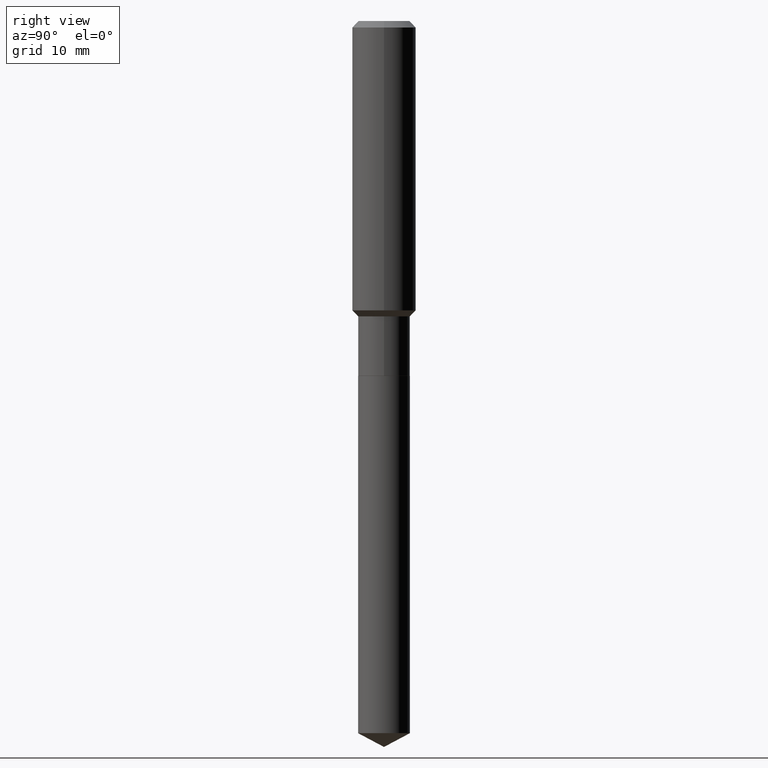
[diagram: clean part render]
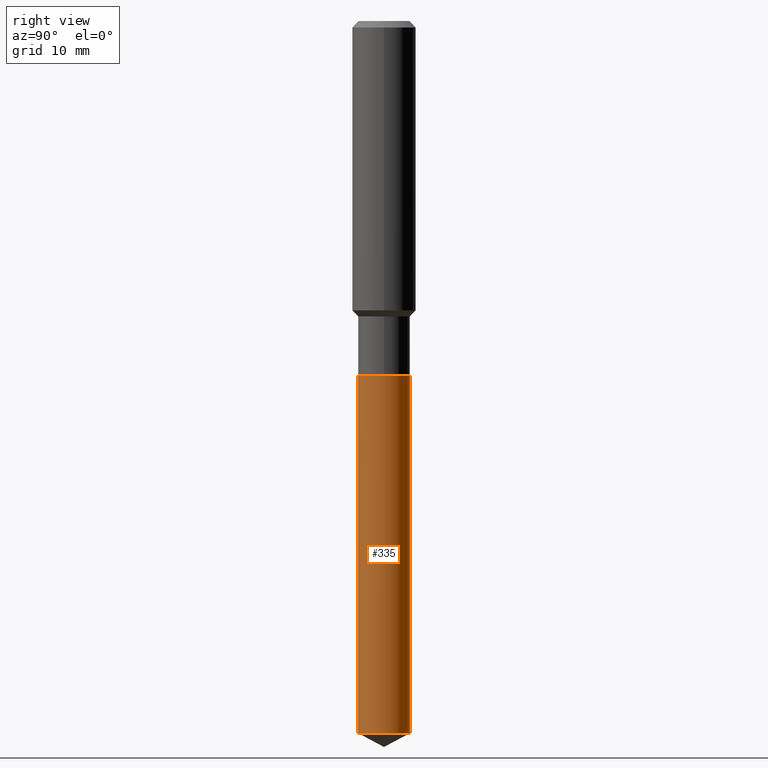
[diagram: same view with one face highlighted and labeled with its STEP entity id]
A machine part, right view. The second image highlights one B-rep face of the part: STEP entity #335.
In plain terms, the highlighted cylindrical surface (edge-blend (fillet) strip) has radius 3.2499 mm, axis along (-0, 0, 1).
Its self-contained STEP definition (entity closure, byte-faithful):
#32 = ORIENTED_EDGE ( 'NONE', *, *, #482, .F. ) ;
#34 = CARTESIAN_POINT ( 'NONE',  ( 8.594984284570985817E-29, -1.227143438120363125E-14, -3.514667778218913963 ) ) ;
#40 = ORIENTED_EDGE ( 'NONE', *, *, #447, .T. ) ;
#57 = DIRECTION ( 'NONE',  ( -2.445453981402094289E-29, 3.491502568776236889E-15, 1.000000000000000000 ) ) ;
#70 = AXIS2_PLACEMENT_3D ( 'NONE', #34, #218, #258 ) ;
#78 = ORIENTED_EDGE ( 'NONE', *, *, #232, .F. ) ;
#103 = DIRECTION ( 'NONE',  ( -6.982962677686266711E-15, -1.000000000000000000, 4.270180529369696392E-15 ) ) ;
#140 = CIRCLE ( 'NONE', #70, 0.1279500000000000082 ) ;
#147 = VERTEX_POINT ( 'NONE', #342 ) ;
#165 = CIRCLE ( 'NONE', #448, 0.1279500000000000082 ) ;
#167 = LINE ( 'NONE', #281, #297 ) ;
#172 = CARTESIAN_POINT ( 'NONE',  ( 9.091394304050910416E-16, 0.1279499999999939019, -1.752000000000000890 ) ) ;
#178 = CARTESIAN_POINT ( 'NONE',  ( 4.284461348436360250E-29, -6.117075305653192263E-15, -1.752000000000000224 ) ) ;
#212 = CYLINDRICAL_SURFACE ( 'NONE', #347, 0.1279500000000000082 ) ;
#218 = DIRECTION ( 'NONE',  ( -2.445453981402094289E-29, 3.491502568776236495E-15, 1.000000000000000000 ) ) ;
#231 = ORIENTED_EDGE ( 'NONE', *, *, #313, .T. ) ;
#232 = EDGE_CURVE ( 'NONE', #329, #259, #167, .T. ) ;
#240 = EDGE_LOOP ( 'NONE', ( #40, #231, #32, #78 ) ) ;
#253 = CARTESIAN_POINT ( 'NONE',  ( 4.284461348436360250E-29, -6.117075305653192263E-15, -1.752000000000000224 ) ) ;
#255 = CARTESIAN_POINT ( 'NONE',  ( 9.091394304051342317E-16, 0.1279499999999877680, -3.514667778218914851 ) ) ;
#258 = DIRECTION ( 'NONE',  ( -6.982962677686266711E-15, -1.000000000000000000, 4.270180529369696392E-15 ) ) ;
#259 = VERTEX_POINT ( 'NONE', #361 ) ;
#260 = DIRECTION ( 'NONE',  ( -2.445453981402094289E-29, 3.491502568776236495E-15, 1.000000000000000000 ) ) ;
#281 = CARTESIAN_POINT ( 'NONE',  ( -8.934700746099150741E-16, -0.1279500000000061144, -1.751999999999999780 ) ) ;
#295 = FACE_OUTER_BOUND ( 'NONE', #240, .T. ) ;
#297 = VECTOR ( 'NONE', #57, 39.37007874015748143 ) ;
#313 = EDGE_CURVE ( 'NONE', #322, #147, #481, .T. ) ;
#322 = VERTEX_POINT ( 'NONE', #255 ) ;
#329 = VERTEX_POINT ( 'NONE', #372 ) ;
#335 = ADVANCED_FACE ( 'NONE', ( #295 ), #212, .T. ) ;
#342 = CARTESIAN_POINT ( 'NONE',  ( 9.091394304051344289E-16, 0.1279499999999939019, -1.752000000000000890 ) ) ;
#347 = AXIS2_PLACEMENT_3D ( 'NONE', #253, #260, #415 ) ;
#361 = CARTESIAN_POINT ( 'NONE',  ( -8.934700746099150741E-16, -0.1279500000000061144, -1.751999999999999780 ) ) ;
#372 = CARTESIAN_POINT ( 'NONE',  ( -8.934700746098720812E-16, -0.1279500000000123039, -3.514667778218913519 ) ) ;
#415 = DIRECTION ( 'NONE',  ( -6.982962677686266711E-15, -1.000000000000000000, 4.270180529369696392E-15 ) ) ;
#439 = VECTOR ( 'NONE', #483, 39.37007874015748143 ) ;
#447 = EDGE_CURVE ( 'NONE', #329, #322, #140, .T. ) ;
#448 = AXIS2_PLACEMENT_3D ( 'NONE', #178, #449, #103 ) ;
#449 = DIRECTION ( 'NONE',  ( -2.445453981402094289E-29, 3.491502568776236495E-15, 1.000000000000000000 ) ) ;
#481 = LINE ( 'NONE', #172, #439 ) ;
#482 = EDGE_CURVE ( 'NONE', #259, #147, #165, .T. ) ;
#483 = DIRECTION ( 'NONE',  ( -2.445453981402094289E-29, 3.491502568776236889E-15, 1.000000000000000000 ) ) ;